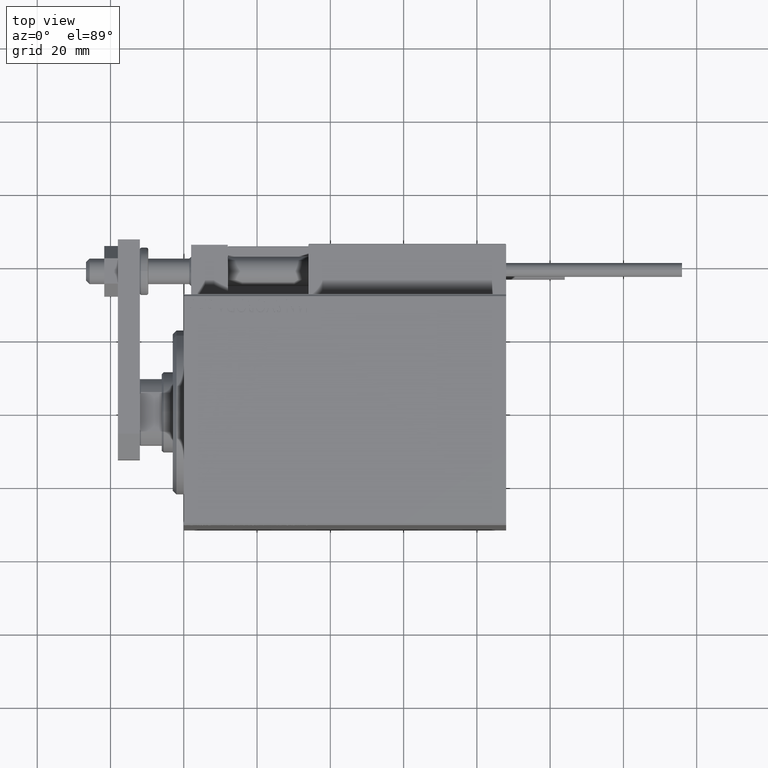
[diagram: clean part render]
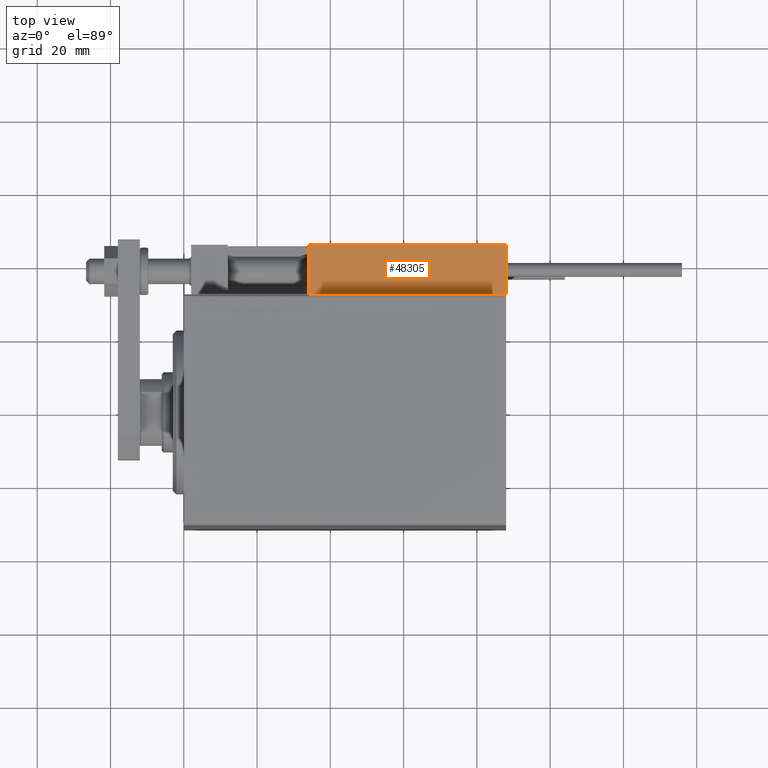
[diagram: same view with one face highlighted and labeled with its STEP entity id]
A machine part, top view. The second image highlights one B-rep face of the part: STEP entity #48305.
In plain terms, the highlighted planar face has unit normal (-0, -0, -1).
Its self-contained STEP definition (entity closure, byte-faithful):
#602 = EDGE_CURVE ( 'NONE', #765, #3609, #31030, .T. ) ;
#765 = VERTEX_POINT ( 'NONE', #41420 ) ;
#3102 = VERTEX_POINT ( 'NONE', #49193 ) ;
#3609 = VERTEX_POINT ( 'NONE', #37884 ) ;
#4326 = PLANE ( 'NONE',  #42508 ) ;
#4787 = CARTESIAN_POINT ( 'NONE',  ( -26.99999999999993605, 20.00000000000002132, 0.000000000000000000 ) ) ;
#8975 = LINE ( 'NONE', #12292, #42650 ) ;
#10088 = EDGE_LOOP ( 'NONE', ( #13292, #31266, #19411, #30560 ) ) ;
#10948 = DIRECTION ( 'NONE',  ( -0.000000000000000000, -0.000000000000000000, -1.000000000000000000 ) ) ;
#12002 = LINE ( 'NONE', #16070, #38392 ) ;
#12292 = CARTESIAN_POINT ( 'NONE',  ( -26.99999999999993605, 20.00000000000002132, 14.00000000000000000 ) ) ;
#13042 = EDGE_CURVE ( 'NONE', #3609, #32463, #33889, .T. ) ;
#13292 = ORIENTED_EDGE ( 'NONE', *, *, #39549, .F. ) ;
#14533 = DIRECTION ( 'NONE',  ( -1.000000000000000000, 6.424901762877062263E-17, 0.000000000000000000 ) ) ;
#16070 = CARTESIAN_POINT ( 'NONE',  ( 27.00000000000006395, 20.00000000000001776, 13.70000000000000107 ) ) ;
#19411 = ORIENTED_EDGE ( 'NONE', *, *, #602, .T. ) ;
#23915 = DIRECTION ( 'NONE',  ( -6.424901762877063495E-17, -1.000000000000000000, 0.000000000000000000 ) ) ;
#27525 = DIRECTION ( 'NONE',  ( 1.000000000000000000, -6.424901762877063495E-17, -0.000000000000000000 ) ) ;
#30560 = ORIENTED_EDGE ( 'NONE', *, *, #13042, .T. ) ;
#31030 = LINE ( 'NONE', #45829, #46955 ) ;
#31266 = ORIENTED_EDGE ( 'NONE', *, *, #34292, .T. ) ;
#32390 = DIRECTION ( 'NONE',  ( -0.000000000000000000, -0.000000000000000000, -1.000000000000000000 ) ) ;
#32463 = VERTEX_POINT ( 'NONE', #4787 ) ;
#33430 = VECTOR ( 'NONE', #14533, 1000.000000000000000 ) ;
#33889 = LINE ( 'NONE', #49407, #33430 ) ;
#34292 = EDGE_CURVE ( 'NONE', #3102, #765, #12002, .T. ) ;
#37884 = CARTESIAN_POINT ( 'NONE',  ( 27.00000000000006395, 20.00000000000001776, 0.000000000000000000 ) ) ;
#38392 = VECTOR ( 'NONE', #27525, 1000.000000000000000 ) ;
#39549 = EDGE_CURVE ( 'NONE', #3102, #32463, #8975, .T. ) ;
#41420 = CARTESIAN_POINT ( 'NONE',  ( 27.00000000000006395, 20.00000000000001776, 13.70000000000000107 ) ) ;
#42508 = AXIS2_PLACEMENT_3D ( 'NONE', #47593, #23915, #43761 ) ;
#42650 = VECTOR ( 'NONE', #32390, 1000.000000000000000 ) ;
#43761 = DIRECTION ( 'NONE',  ( 1.000000000000000000, -6.424901762877063495E-17, 0.000000000000000000 ) ) ;
#45829 = CARTESIAN_POINT ( 'NONE',  ( 27.00000000000006395, 20.00000000000001776, 14.00000000000000000 ) ) ;
#46955 = VECTOR ( 'NONE', #10948, 1000.000000000000000 ) ;
#47344 = FACE_OUTER_BOUND ( 'NONE', #10088, .T. ) ;
#47593 = CARTESIAN_POINT ( 'NONE',  ( 27.00000000000006395, 20.00000000000001776, 14.00000000000000000 ) ) ;
#48305 = ADVANCED_FACE ( 'NONE', ( #47344 ), #4326, .F. ) ;
#49193 = CARTESIAN_POINT ( 'NONE',  ( -26.99999999999993605, 20.00000000000002132, 13.70000000000000107 ) ) ;
#49407 = CARTESIAN_POINT ( 'NONE',  ( 27.00000000000006395, 20.00000000000001776, 0.000000000000000000 ) ) ;